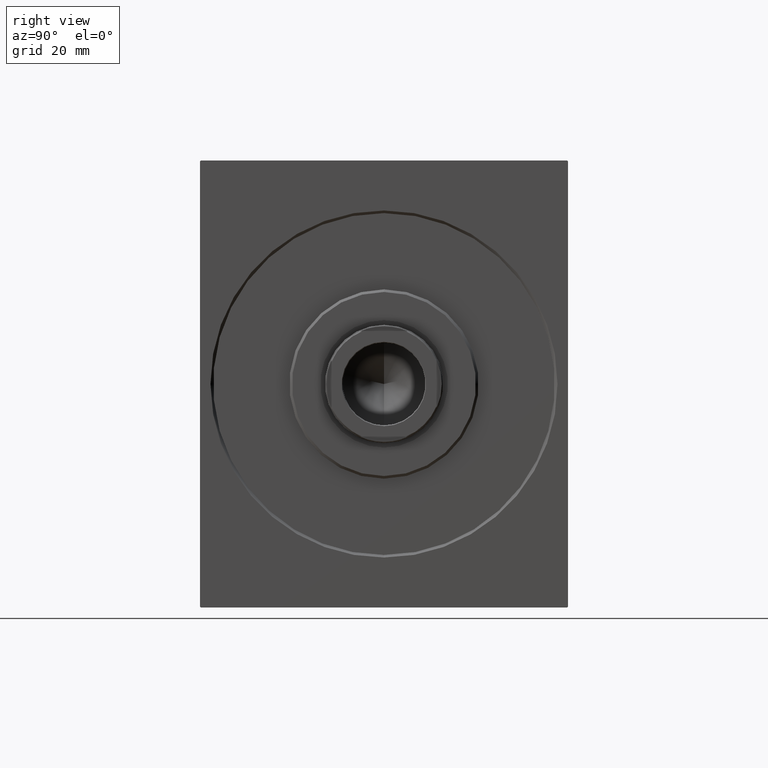
[diagram: clean part render]
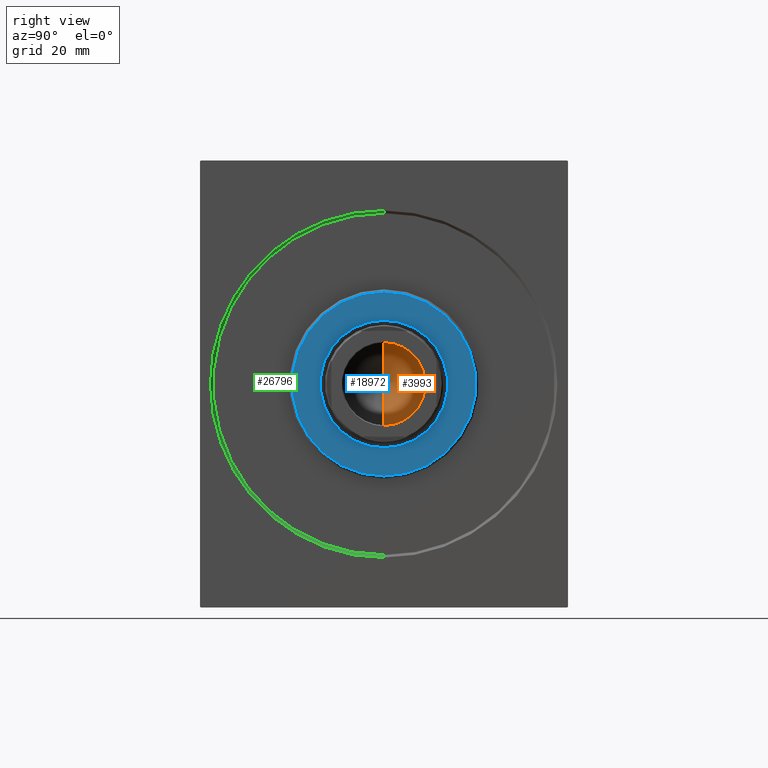
[diagram: same view with three faces highlighted in distinct colors, each labeled with its STEP entity id]
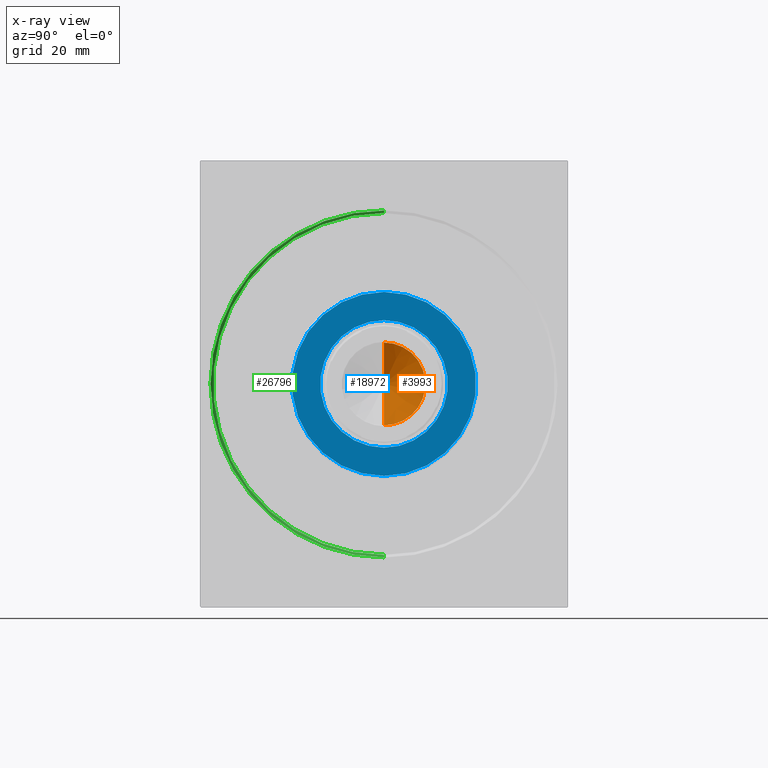
[diagram: x-ray of the same camera — body ghosted, the three highlighted faces saturated]
A machine part, right view with three faces highlighted in distinct colors.
The next image is the same camera in x-ray (body ghosted, the three faces saturated) — at least one of them is partly hidden behind the body in this view.
Their STEP definitions:

[orange] entity #3993 — the highlighted conical surface has half-angle 59 deg.
#172 = ORIENTED_EDGE ( 'NONE', *, *, #22759, .T. ) ;
#1495 = AXIS2_PLACEMENT_3D ( 'NONE', #40414, #3234, #7897 ) ;
#2180 = CONICAL_SURFACE ( 'NONE', #1495, 15.74999999999999289, 1.029744258676653867 ) ;
#3234 = DIRECTION ( 'NONE',  ( -0.000000000000000000, -0.000000000000000000, 1.000000000000000000 ) ) ;
#3339 = VERTEX_POINT ( 'NONE', #28748 ) ;
#3993 = ADVANCED_FACE ( 'NONE', ( #21020 ), #2180, .F. ) ;
#4407 = AXIS2_PLACEMENT_3D ( 'NONE', #7843, #21980, #18773 ) ;
#7843 = CARTESIAN_POINT ( 'NONE',  ( 0.000000000000000000, 0.000000000000000000, 106.0000000000000142 ) ) ;
#7897 = DIRECTION ( 'NONE',  ( 1.000000000000000000, 0.000000000000000000, 0.000000000000000000 ) ) ;
#8892 = VERTEX_POINT ( 'NONE', #29409 ) ;
#15314 = EDGE_CURVE ( 'NONE', #34048, #8892, #16922, .T. ) ;
#16922 = CIRCLE ( 'NONE', #4407, 15.74999999999999289 ) ;
#17641 = VECTOR ( 'NONE', #31983, 1000.000000000000000 ) ;
#18520 = ORIENTED_EDGE ( 'NONE', *, *, #15314, .T. ) ;
#18773 = DIRECTION ( 'NONE',  ( 1.000000000000000000, 0.000000000000000000, 0.000000000000000000 ) ) ;
#18853 = ORIENTED_EDGE ( 'NONE', *, *, #21270, .F. ) ;
#19146 = CARTESIAN_POINT ( 'NONE',  ( 15.74999999999999289, 0.000000000000000000, 106.0000000000000142 ) ) ;
#19801 = LINE ( 'NONE', #23423, #32731 ) ;
#21020 = FACE_OUTER_BOUND ( 'NONE', #26169, .T. ) ;
#21270 = EDGE_CURVE ( 'NONE', #3339, #8892, #19801, .T. ) ;
#21980 = DIRECTION ( 'NONE',  ( -0.000000000000000000, -0.000000000000000000, 1.000000000000000000 ) ) ;
#22501 = LINE ( 'NONE', #28941, #17641 ) ;
#22759 = EDGE_CURVE ( 'NONE', #3339, #34048, #22501, .T. ) ;
#23423 = CARTESIAN_POINT ( 'NONE',  ( -15.74999999999999289, 1.928818708657080556E-15, 106.0000000000000142 ) ) ;
#26169 = EDGE_LOOP ( 'NONE', ( #18853, #172, #18520 ) ) ;
#28748 = CARTESIAN_POINT ( 'NONE',  ( -1.199718644317817648E-14, 0.000000000000000000, 96.53644525031593560 ) ) ;
#28941 = CARTESIAN_POINT ( 'NONE',  ( 15.74999999999999289, 0.000000000000000000, 106.0000000000000142 ) ) ;
#29409 = CARTESIAN_POINT ( 'NONE',  ( -15.74999999999999289, 1.928818708657080556E-15, 106.0000000000000142 ) ) ;
#31983 = DIRECTION ( 'NONE',  ( 0.8571673007021120005, 0.000000000000000000, 0.5150380749100547106 ) ) ;
#32731 = VECTOR ( 'NONE', #36789, 1000.000000000000000 ) ;
#34048 = VERTEX_POINT ( 'NONE', #19146 ) ;
#36789 = DIRECTION ( 'NONE',  ( -0.8571673007021120005, 1.049727191138618326E-16, 0.5150380749100547106 ) ) ;
#40414 = CARTESIAN_POINT ( 'NONE',  ( 0.000000000000000000, 0.000000000000000000, 106.0000000000000142 ) ) ;

[blue] entity #18972 — the highlighted planar face has unit normal (1, 0, 0).
#1434 = DIRECTION ( 'NONE',  ( 0.000000000000000000, 0.000000000000000000, -1.000000000000000000 ) ) ;
#2030 = DIRECTION ( 'NONE',  ( 0.000000000000000000, 0.000000000000000000, -1.000000000000000000 ) ) ;
#2382 = CARTESIAN_POINT ( 'NONE',  ( 3.000000000000000000, 0.000000000000000000, 0.000000000000000000 ) ) ;
#2648 = EDGE_CURVE ( 'NONE', #7746, #34581, #14528, .T. ) ;
#5962 = FACE_BOUND ( 'NONE', #41248, .T. ) ;
#6261 = CARTESIAN_POINT ( 'NONE',  ( 3.000000000000000000, 0.000000000000000000, 34.99999999999997868 ) ) ;
#7235 = CIRCLE ( 'NONE', #37455, 34.99999999999997868 ) ;
#7746 = VERTEX_POINT ( 'NONE', #26747 ) ;
#10696 = ORIENTED_EDGE ( 'NONE', *, *, #20217, .T. ) ;
#11420 = ORIENTED_EDGE ( 'NONE', *, *, #40955, .T. ) ;
#12629 = PLANE ( 'NONE',  #18250 ) ;
#12968 = EDGE_CURVE ( 'NONE', #23292, #21631, #7235, .T. ) ;
#13480 = CIRCLE ( 'NONE', #24428, 24.25000000000000000 ) ;
#14008 = CARTESIAN_POINT ( 'NONE',  ( 3.000000000000000000, 0.000000000000000000, 0.000000000000000000 ) ) ;
#14127 = CARTESIAN_POINT ( 'NONE',  ( 3.000000000000000000, 4.347496136973101704E-15, -34.99999999999997868 ) ) ;
#14528 = CIRCLE ( 'NONE', #38612, 24.25000000000000000 ) ;
#14743 = DIRECTION ( 'NONE',  ( 1.000000000000000000, -0.000000000000000000, 0.000000000000000000 ) ) ;
#15533 = DIRECTION ( 'NONE',  ( -1.000000000000000000, 0.000000000000000000, -0.000000000000000000 ) ) ;
#16151 = AXIS2_PLACEMENT_3D ( 'NONE', #14008, #24083, #33786 ) ;
#18250 = AXIS2_PLACEMENT_3D ( 'NONE', #27206, #23773, #23139 ) ;
#18972 = ADVANCED_FACE ( 'NONE', ( #22302, #5962 ), #12629, .T. ) ;
#20217 = EDGE_CURVE ( 'NONE', #34581, #7746, #13480, .T. ) ;
#20989 = CARTESIAN_POINT ( 'NONE',  ( 3.000000000000000000, 0.000000000000000000, 0.000000000000000000 ) ) ;
#21631 = VERTEX_POINT ( 'NONE', #14127 ) ;
#22302 = FACE_OUTER_BOUND ( 'NONE', #37918, .T. ) ;
#23139 = DIRECTION ( 'NONE',  ( 0.000000000000000000, 0.000000000000000000, -1.000000000000000000 ) ) ;
#23292 = VERTEX_POINT ( 'NONE', #6261 ) ;
#23743 = ORIENTED_EDGE ( 'NONE', *, *, #12968, .T. ) ;
#23773 = DIRECTION ( 'NONE',  ( 1.000000000000000000, -0.000000000000000000, 0.000000000000000000 ) ) ;
#24083 = DIRECTION ( 'NONE',  ( 1.000000000000000000, -0.000000000000000000, 0.000000000000000000 ) ) ;
#24428 = AXIS2_PLACEMENT_3D ( 'NONE', #40431, #37173, #1434 ) ;
#26747 = CARTESIAN_POINT ( 'NONE',  ( 3.000000000000000000, 2.969768487932331287E-15, -24.25000000000000000 ) ) ;
#27206 = CARTESIAN_POINT ( 'NONE',  ( 3.000000000000000000, 0.000000000000000000, 0.000000000000000000 ) ) ;
#27894 = ORIENTED_EDGE ( 'NONE', *, *, #2648, .T. ) ;
#28561 = CARTESIAN_POINT ( 'NONE',  ( 3.000000000000000000, 0.000000000000000000, 24.25000000000000000 ) ) ;
#28641 = DIRECTION ( 'NONE',  ( 0.000000000000000000, 0.000000000000000000, -1.000000000000000000 ) ) ;
#33346 = CIRCLE ( 'NONE', #16151, 34.99999999999997868 ) ;
#33786 = DIRECTION ( 'NONE',  ( 0.000000000000000000, 0.000000000000000000, -1.000000000000000000 ) ) ;
#34581 = VERTEX_POINT ( 'NONE', #28561 ) ;
#37173 = DIRECTION ( 'NONE',  ( -1.000000000000000000, 0.000000000000000000, -0.000000000000000000 ) ) ;
#37455 = AXIS2_PLACEMENT_3D ( 'NONE', #20989, #14743, #2030 ) ;
#37918 = EDGE_LOOP ( 'NONE', ( #23743, #11420 ) ) ;
#38612 = AXIS2_PLACEMENT_3D ( 'NONE', #2382, #15533, #28641 ) ;
#40431 = CARTESIAN_POINT ( 'NONE',  ( 3.000000000000000000, 0.000000000000000000, 0.000000000000000000 ) ) ;
#40955 = EDGE_CURVE ( 'NONE', #21631, #23292, #33346, .T. ) ;
#41248 = EDGE_LOOP ( 'NONE', ( #10696, #27894 ) ) ;

[green] entity #26796 — the highlighted conical surface has half-angle 45 deg.
#122 = CARTESIAN_POINT ( 'NONE',  ( 0.000000000000000000, 0.000000000000000000, 65.99999999999994316 ) ) ;
#345 = VECTOR ( 'NONE', #40561, 1000.000000000000114 ) ;
#1183 = ORIENTED_EDGE ( 'NONE', *, *, #8958, .T. ) ;
#4450 = ORIENTED_EDGE ( 'NONE', *, *, #40135, .F. ) ;
#8579 = AXIS2_PLACEMENT_3D ( 'NONE', #41528, #38300, #32046 ) ;
#8958 = EDGE_CURVE ( 'NONE', #16020, #34413, #9128, .T. ) ;
#9128 = LINE ( 'NONE', #15145, #11261 ) ;
#9532 = DIRECTION ( 'NONE',  ( 0.000000000000000000, 0.000000000000000000, 1.000000000000000000 ) ) ;
#11115 = DIRECTION ( 'NONE',  ( -0.7071067811865474617, 0.000000000000000000, 0.7071067811865474617 ) ) ;
#11261 = VECTOR ( 'NONE', #11115, 1000.000000000000114 ) ;
#13174 = ORIENTED_EDGE ( 'NONE', *, *, #17295, .F. ) ;
#15145 = CARTESIAN_POINT ( 'NONE',  ( 0.9999999999999453770, 0.000000000000000000, 65.00000000000000000 ) ) ;
#16020 = VERTEX_POINT ( 'NONE', #35538 ) ;
#16465 = AXIS2_PLACEMENT_3D ( 'NONE', #18790, #31905, #9532 ) ;
#17295 = EDGE_CURVE ( 'NONE', #16020, #24205, #34001, .T. ) ;
#17578 = EDGE_CURVE ( 'NONE', #24205, #25586, #30840, .T. ) ;
#18790 = CARTESIAN_POINT ( 'NONE',  ( 0.9999999999999453770, 0.000000000000000000, 0.000000000000000000 ) ) ;
#20025 = ORIENTED_EDGE ( 'NONE', *, *, #17578, .F. ) ;
#21598 = AXIS2_PLACEMENT_3D ( 'NONE', #41262, #27461, #24236 ) ;
#24205 = VERTEX_POINT ( 'NONE', #36365 ) ;
#24236 = DIRECTION ( 'NONE',  ( 0.000000000000000000, 0.000000000000000000, -1.000000000000000000 ) ) ;
#25586 = VERTEX_POINT ( 'NONE', #40504 ) ;
#26796 = ADVANCED_FACE ( 'NONE', ( #39018 ), #37065, .F. ) ;
#27399 = CARTESIAN_POINT ( 'NONE',  ( 0.9999999999999453770, 7.960204194457797252E-15, -65.00000000000000000 ) ) ;
#27461 = DIRECTION ( 'NONE',  ( 1.000000000000000000, 0.000000000000000000, -0.000000000000000000 ) ) ;
#30522 = CIRCLE ( 'NONE', #21598, 65.99999999999994316 ) ;
#30840 = LINE ( 'NONE', #27399, #345 ) ;
#31905 = DIRECTION ( 'NONE',  ( -1.000000000000000000, 0.000000000000000000, 0.000000000000000000 ) ) ;
#32046 = DIRECTION ( 'NONE',  ( 0.000000000000000000, 0.000000000000000000, -1.000000000000000000 ) ) ;
#32113 = EDGE_LOOP ( 'NONE', ( #20025, #13174, #1183, #4450 ) ) ;
#34001 = CIRCLE ( 'NONE', #8579, 65.00000000000000000 ) ;
#34413 = VERTEX_POINT ( 'NONE', #122 ) ;
#35538 = CARTESIAN_POINT ( 'NONE',  ( 0.9999999999999453770, 0.000000000000000000, 65.00000000000000000 ) ) ;
#36365 = CARTESIAN_POINT ( 'NONE',  ( 0.9999999999999453770, 7.960204194457797252E-15, -65.00000000000000000 ) ) ;
#37065 = CONICAL_SURFACE ( 'NONE', #16465, 65.00000000000000000, 0.7853981633974482790 ) ;
#38300 = DIRECTION ( 'NONE',  ( -1.000000000000000000, 0.000000000000000000, 0.000000000000000000 ) ) ;
#39018 = FACE_OUTER_BOUND ( 'NONE', #32113, .T. ) ;
#40135 = EDGE_CURVE ( 'NONE', #25586, #34413, #30522, .T. ) ;
#40504 = CARTESIAN_POINT ( 'NONE',  ( 0.000000000000000000, 8.082668874372526089E-15, -65.99999999999994316 ) ) ;
#40561 = DIRECTION ( 'NONE',  ( -0.7071067811865474617, 8.659560562354932858E-17, -0.7071067811865474617 ) ) ;
#41262 = CARTESIAN_POINT ( 'NONE',  ( 0.000000000000000000, 0.000000000000000000, 0.000000000000000000 ) ) ;
#41528 = CARTESIAN_POINT ( 'NONE',  ( 0.9999999999999453770, 0.000000000000000000, 0.000000000000000000 ) ) ;